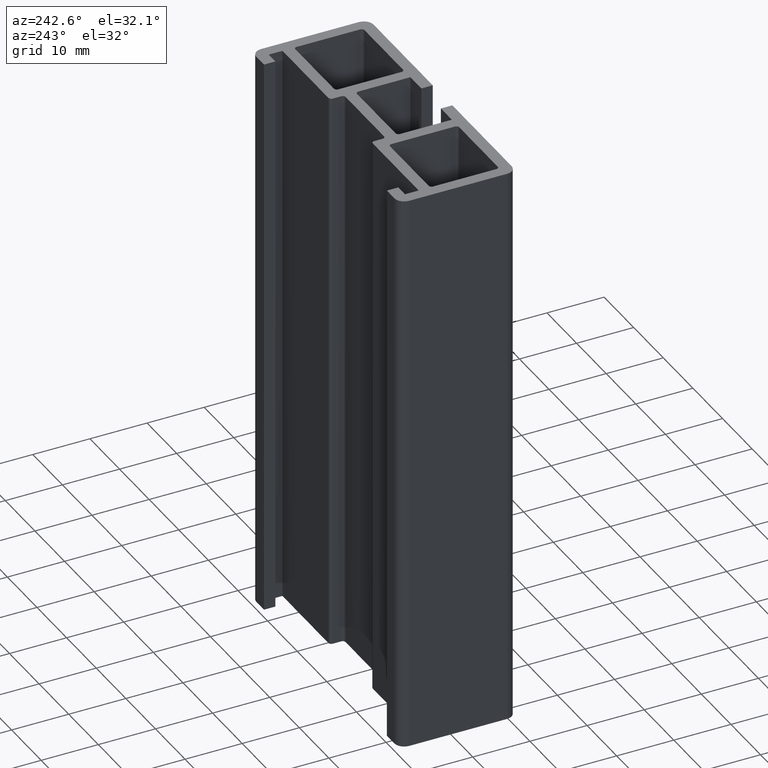
[diagram: clean part render]
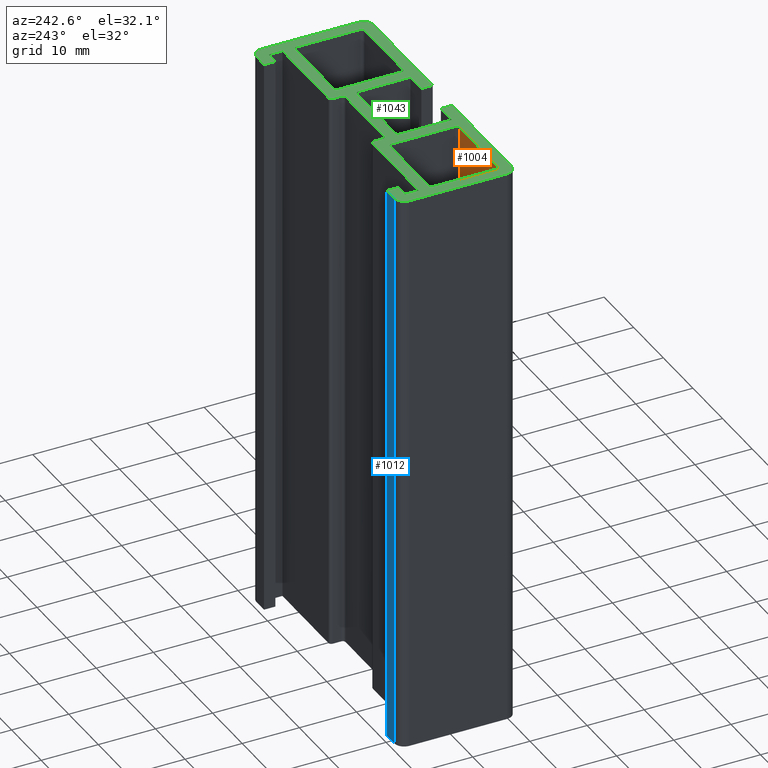
[diagram: same view with three faces highlighted in distinct colors, each labeled with its STEP entity id]
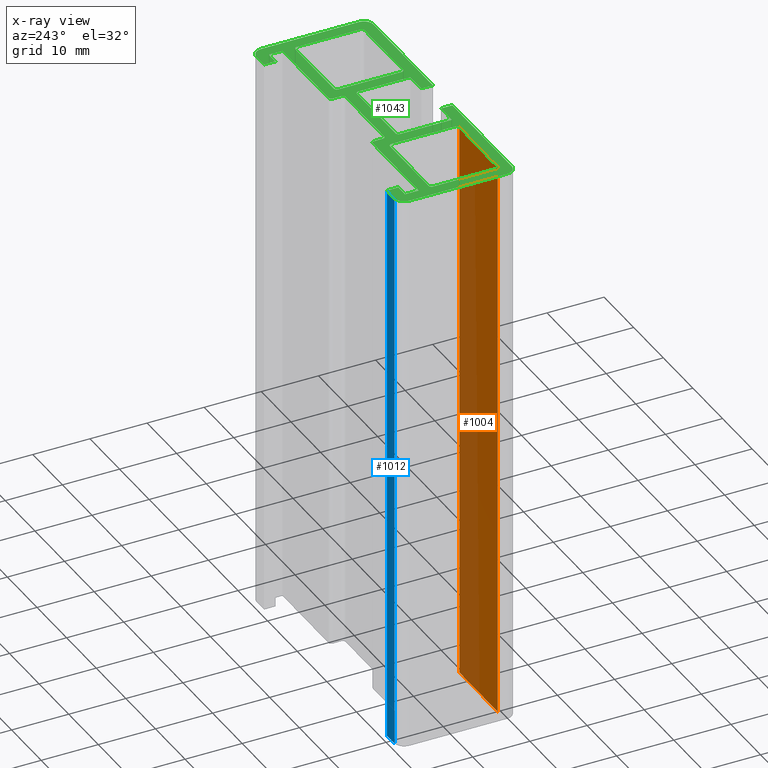
[diagram: x-ray of the same camera — body ghosted, the three highlighted faces saturated]
A machine part, auxiliary view with three faces highlighted in distinct colors.
The next image is the same camera in x-ray (body ghosted, the three faces saturated) — at least one of them is partly hidden behind the body in this view.
Their STEP definitions:

[orange] entity #1004 — the highlighted planar face has unit normal (0, -1, 0).
#24=PLANE('',#1070);
#64=FACE_OUTER_BOUND('',#116,.T.);
#116=EDGE_LOOP('',(#719,#720,#721,#722));
#182=LINE('',#1495,#296);
#183=LINE('',#1499,#297);
#184=LINE('',#1501,#298);
#185=LINE('',#1502,#299);
#296=VECTOR('',#1202,100.);
#297=VECTOR('',#1207,13.);
#298=VECTOR('',#1208,100.);
#299=VECTOR('',#1209,13.);
#447=VERTEX_POINT('',#1492);
#448=VERTEX_POINT('',#1494);
#449=VERTEX_POINT('',#1498);
#450=VERTEX_POINT('',#1500);
#557=EDGE_CURVE('',#447,#448,#182,.T.);
#559=EDGE_CURVE('',#449,#447,#183,.T.);
#560=EDGE_CURVE('',#449,#450,#184,.T.);
#561=EDGE_CURVE('',#448,#450,#185,.T.);
#719=ORIENTED_EDGE('',*,*,#559,.F.);
#720=ORIENTED_EDGE('',*,*,#560,.T.);
#721=ORIENTED_EDGE('',*,*,#561,.F.);
#722=ORIENTED_EDGE('',*,*,#557,.F.);
#1004=ADVANCED_FACE('',(#64),#24,.F.);
#1070=AXIS2_PLACEMENT_3D('',#1497,#1205,#1206);
#1202=DIRECTION('',(0.,0.,1.));
#1205=DIRECTION('center_axis',(0.,-1.,0.));
#1206=DIRECTION('ref_axis',(1.,0.,0.));
#1207=DIRECTION('',(1.,0.,0.));
#1208=DIRECTION('',(0.,0.,1.));
#1209=DIRECTION('',(-1.,0.,0.));
#1492=CARTESIAN_POINT('',(-9.49999999999999,-8.24999999999999,0.));
#1494=CARTESIAN_POINT('',(-9.49999999999999,-8.24999999999999,100.));
#1495=CARTESIAN_POINT('',(-9.49999999999999,-8.24999999999999,0.));
#1497=CARTESIAN_POINT('Origin',(-22.5,-8.24999999999999,0.));
#1498=CARTESIAN_POINT('',(-22.5,-8.24999999999999,0.));
#1499=CARTESIAN_POINT('',(-11.2500000000788,-8.24999999999999,0.));
#1500=CARTESIAN_POINT('',(-22.5,-8.24999999999999,100.));
#1501=CARTESIAN_POINT('',(-22.5,-8.24999999999999,0.));
#1502=CARTESIAN_POINT('',(-11.2500000000788,-8.24999999999999,100.));

[blue] entity #1012 — the highlighted planar face has unit normal (0, 1, 0).
#28=PLANE('',#1086);
#72=FACE_OUTER_BOUND('',#124,.T.);
#124=EDGE_LOOP('',(#751,#752,#753,#754));
#198=LINE('',#1544,#312);
#199=LINE('',#1547,#313);
#200=LINE('',#1549,#314);
#201=LINE('',#1550,#315);
#312=VECTOR('',#1252,100.);
#313=VECTOR('',#1255,2.55000000000003);
#314=VECTOR('',#1256,2.55000000000003);
#315=VECTOR('',#1257,100.);
#463=VERTEX_POINT('',#1540);
#464=VERTEX_POINT('',#1542);
#465=VERTEX_POINT('',#1546);
#466=VERTEX_POINT('',#1548);
#582=EDGE_CURVE('',#463,#464,#198,.T.);
#583=EDGE_CURVE('',#465,#463,#199,.T.);
#584=EDGE_CURVE('',#466,#464,#200,.T.);
#585=EDGE_CURVE('',#465,#466,#201,.T.);
#751=ORIENTED_EDGE('',*,*,#583,.T.);
#752=ORIENTED_EDGE('',*,*,#582,.T.);
#753=ORIENTED_EDGE('',*,*,#584,.F.);
#754=ORIENTED_EDGE('',*,*,#585,.F.);
#1012=ADVANCED_FACE('',(#72),#28,.T.);
#1086=AXIS2_PLACEMENT_3D('',#1545,#1253,#1254);
#1252=DIRECTION('',(0.,0.,1.));
#1253=DIRECTION('center_axis',(0.,1.,0.));
#1254=DIRECTION('ref_axis',(-1.,0.,0.));
#1255=DIRECTION('',(-1.,0.,0.));
#1256=DIRECTION('',(-1.,0.,0.));
#1257=DIRECTION('',(0.,0.,1.));
#1540=CARTESIAN_POINT('',(-23.3,10.25,0.));
#1542=CARTESIAN_POINT('',(-23.3,10.25,100.));
#1544=CARTESIAN_POINT('',(-23.3,10.25,0.));
#1545=CARTESIAN_POINT('Origin',(-20.75,10.25,0.));
#1546=CARTESIAN_POINT('',(-20.75,10.25,0.));
#1547=CARTESIAN_POINT('',(-20.75,10.25,0.));
#1548=CARTESIAN_POINT('',(-20.75,10.25,100.));
#1549=CARTESIAN_POINT('',(-20.75,10.25,100.));
#1550=CARTESIAN_POINT('',(-20.75,10.25,0.));

[green] entity #1043 — the highlighted planar face has unit normal (0, 0, 1).
#15=FACE_BOUND('',#156,.T.);
#16=FACE_BOUND('',#157,.T.);
#51=PLANE('',#1133);
#103=FACE_OUTER_BOUND('',#155,.T.);
#155=EDGE_LOOP('',(#875,#876,#877,#878,#879,#880,#881,#882,#883,#884,#885,
#886,#887,#888,#889,#890,#891,#892,#893,#894,#895,#896,#897,#898,#899,#900,
#901,#902,#903,#904,#905,#906,#907,#908));
#156=EDGE_LOOP('',(#909,#910,#911,#912,#913,#914,#915,#916));
#157=EDGE_LOOP('',(#917,#918,#919,#920,#921,#922,#923,#924));
#165=LINE('',#1442,#279);
#169=LINE('',#1454,#283);
#173=LINE('',#1466,#287);
#176=LINE('',#1475,#290);
#181=LINE('',#1490,#295);
#185=LINE('',#1502,#299);
#189=LINE('',#1514,#303);
#192=LINE('',#1523,#306);
#196=LINE('',#1537,#310);
#200=LINE('',#1549,#314);
#203=LINE('',#1555,#317);
#206=LINE('',#1561,#320);
#209=LINE('',#1567,#323);
#212=LINE('',#1573,#326);
#216=LINE('',#1585,#330);
#220=LINE('',#1597,#334);
#224=LINE('',#1609,#338);
#228=LINE('',#1621,#342);
#231=LINE('',#1627,#345);
#234=LINE('',#1633,#348);
#237=LINE('',#1639,#351);
#240=LINE('',#1645,#354);
#244=LINE('',#1657,#358);
#248=LINE('',#1669,#362);
#251=LINE('',#1675,#365);
#254=LINE('',#1681,#368);
#257=LINE('',#1687,#371);
#261=LINE('',#1699,#375);
#265=LINE('',#1711,#379);
#268=LINE('',#1717,#382);
#271=LINE('',#1723,#385);
#274=LINE('',#1727,#388);
#279=VECTOR('',#1149,11.1);
#283=VECTOR('',#1161,13.);
#287=VECTOR('',#1173,11.1);
#290=VECTOR('',#1184,13.);
#295=VECTOR('',#1197,11.1);
#299=VECTOR('',#1209,13.);
#303=VECTOR('',#1221,11.1);
#306=VECTOR('',#1232,13.);
#310=VECTOR('',#1244,17.1);
#314=VECTOR('',#1256,2.55000000000003);
#317=VECTOR('',#1261,2.00000000000001);
#320=VECTOR('',#1266,2.25000000000001);
#323=VECTOR('',#1271,2.4);
#326=VECTOR('',#1276,15.5);
#330=VECTOR('',#1288,1.50000000872664);
#334=VECTOR('',#1300,13.);
#338=VECTOR('',#1312,1.49999999127337);
#342=VECTOR('',#1324,15.5);
#345=VECTOR('',#1329,2.4);
#348=VECTOR('',#1334,2.25);
#351=VECTOR('',#1339,2.00000000000001);
#354=VECTOR('',#1344,2.54999999999999);
#358=VECTOR('',#1356,17.1);
#362=VECTOR('',#1368,20.);
#365=VECTOR('',#1373,1.99999999999999);
#368=VECTOR('',#1378,3.70000000000001);
#371=VECTOR('',#1383,9.10000049999999);
#375=VECTOR('',#1395,13.);
#379=VECTOR('',#1407,9.10000049999999);
#382=VECTOR('',#1412,3.69999999999999);
#385=VECTOR('',#1417,1.99999999999999);
#388=VECTOR('',#1422,20.);
#390=CIRCLE('',#1049,0.5);
#392=CIRCLE('',#1053,0.5);
#394=CIRCLE('',#1057,0.5);
#396=CIRCLE('',#1061,0.5);
#398=CIRCLE('',#1065,0.5);
#400=CIRCLE('',#1069,0.5);
#402=CIRCLE('',#1073,0.5);
#404=CIRCLE('',#1077,0.5);
#406=CIRCLE('',#1081,1.7);
#408=CIRCLE('',#1085,1.7);
#410=CIRCLE('',#1093,0.5);
#412=CIRCLE('',#1097,0.5);
#414=CIRCLE('',#1101,0.5);
#416=CIRCLE('',#1105,0.5);
#418=CIRCLE('',#1113,1.7);
#420=CIRCLE('',#1117,1.7);
#422=CIRCLE('',#1124,0.5);
#424=CIRCLE('',#1128,0.5);
#427=VERTEX_POINT('',#1432);
#428=VERTEX_POINT('',#1434);
#430=VERTEX_POINT('',#1440);
#432=VERTEX_POINT('',#1446);
#434=VERTEX_POINT('',#1452);
#436=VERTEX_POINT('',#1458);
#438=VERTEX_POINT('',#1464);
#440=VERTEX_POINT('',#1470);
#443=VERTEX_POINT('',#1480);
#444=VERTEX_POINT('',#1482);
#446=VERTEX_POINT('',#1488);
#448=VERTEX_POINT('',#1494);
#450=VERTEX_POINT('',#1500);
#452=VERTEX_POINT('',#1506);
#454=VERTEX_POINT('',#1512);
#456=VERTEX_POINT('',#1518);
#459=VERTEX_POINT('',#1528);
#460=VERTEX_POINT('',#1530);
#462=VERTEX_POINT('',#1536);
#464=VERTEX_POINT('',#1542);
#466=VERTEX_POINT('',#1548);
#468=VERTEX_POINT('',#1554);
#470=VERTEX_POINT('',#1560);
#472=VERTEX_POINT('',#1566);
#474=VERTEX_POINT('',#1572);
#476=VERTEX_POINT('',#1578);
#478=VERTEX_POINT('',#1584);
#480=VERTEX_POINT('',#1590);
#482=VERTEX_POINT('',#1596);
#484=VERTEX_POINT('',#1602);
#486=VERTEX_POINT('',#1608);
#488=VERTEX_POINT('',#1614);
#490=VERTEX_POINT('',#1620);
#492=VERTEX_POINT('',#1626);
#494=VERTEX_POINT('',#1632);
#496=VERTEX_POINT('',#1638);
#498=VERTEX_POINT('',#1644);
#500=VERTEX_POINT('',#1650);
#502=VERTEX_POINT('',#1656);
#504=VERTEX_POINT('',#1662);
#506=VERTEX_POINT('',#1668);
#508=VERTEX_POINT('',#1674);
#510=VERTEX_POINT('',#1680);
#512=VERTEX_POINT('',#1686);
#514=VERTEX_POINT('',#1692);
#516=VERTEX_POINT('',#1698);
#518=VERTEX_POINT('',#1704);
#520=VERTEX_POINT('',#1710);
#522=VERTEX_POINT('',#1716);
#524=VERTEX_POINT('',#1722);
#527=EDGE_CURVE('',#428,#427,#390,.T.);
#531=EDGE_CURVE('',#427,#430,#165,.T.);
#534=EDGE_CURVE('',#430,#432,#392,.T.);
#537=EDGE_CURVE('',#432,#434,#169,.T.);
#540=EDGE_CURVE('',#434,#436,#394,.T.);
#543=EDGE_CURVE('',#436,#438,#173,.T.);
#546=EDGE_CURVE('',#438,#440,#396,.T.);
#548=EDGE_CURVE('',#440,#428,#176,.T.);
#551=EDGE_CURVE('',#444,#443,#398,.T.);
#555=EDGE_CURVE('',#443,#446,#181,.T.);
#558=EDGE_CURVE('',#446,#448,#400,.T.);
#561=EDGE_CURVE('',#448,#450,#185,.T.);
#564=EDGE_CURVE('',#450,#452,#402,.T.);
#567=EDGE_CURVE('',#452,#454,#189,.T.);
#570=EDGE_CURVE('',#454,#456,#404,.T.);
#572=EDGE_CURVE('',#456,#444,#192,.T.);
#575=EDGE_CURVE('',#460,#459,#406,.T.);
#578=EDGE_CURVE('',#462,#460,#196,.T.);
#581=EDGE_CURVE('',#464,#462,#408,.T.);
#584=EDGE_CURVE('',#466,#464,#200,.T.);
#587=EDGE_CURVE('',#468,#466,#203,.T.);
#590=EDGE_CURVE('',#470,#468,#206,.T.);
#593=EDGE_CURVE('',#472,#470,#209,.T.);
#596=EDGE_CURVE('',#474,#472,#212,.T.);
#599=EDGE_CURVE('',#476,#474,#410,.T.);
#602=EDGE_CURVE('',#478,#476,#216,.T.);
#605=EDGE_CURVE('',#480,#478,#412,.T.);
#608=EDGE_CURVE('',#482,#480,#220,.T.);
#611=EDGE_CURVE('',#484,#482,#414,.T.);
#614=EDGE_CURVE('',#486,#484,#224,.T.);
#617=EDGE_CURVE('',#488,#486,#416,.T.);
#620=EDGE_CURVE('',#490,#488,#228,.T.);
#623=EDGE_CURVE('',#492,#490,#231,.T.);
#626=EDGE_CURVE('',#494,#492,#234,.T.);
#629=EDGE_CURVE('',#496,#494,#237,.T.);
#632=EDGE_CURVE('',#498,#496,#240,.T.);
#635=EDGE_CURVE('',#500,#498,#418,.T.);
#638=EDGE_CURVE('',#502,#500,#244,.T.);
#641=EDGE_CURVE('',#504,#502,#420,.T.);
#644=EDGE_CURVE('',#506,#504,#248,.T.);
#647=EDGE_CURVE('',#508,#506,#251,.T.);
#650=EDGE_CURVE('',#510,#508,#254,.T.);
#653=EDGE_CURVE('',#512,#510,#257,.T.);
#656=EDGE_CURVE('',#514,#512,#422,.T.);
#659=EDGE_CURVE('',#516,#514,#261,.T.);
#662=EDGE_CURVE('',#518,#516,#424,.T.);
#665=EDGE_CURVE('',#520,#518,#265,.T.);
#668=EDGE_CURVE('',#522,#520,#268,.T.);
#671=EDGE_CURVE('',#524,#522,#271,.T.);
#674=EDGE_CURVE('',#459,#524,#274,.T.);
#875=ORIENTED_EDGE('',*,*,#674,.T.);
#876=ORIENTED_EDGE('',*,*,#671,.T.);
#877=ORIENTED_EDGE('',*,*,#668,.T.);
#878=ORIENTED_EDGE('',*,*,#665,.T.);
#879=ORIENTED_EDGE('',*,*,#662,.T.);
#880=ORIENTED_EDGE('',*,*,#659,.T.);
#881=ORIENTED_EDGE('',*,*,#656,.T.);
#882=ORIENTED_EDGE('',*,*,#653,.T.);
#883=ORIENTED_EDGE('',*,*,#650,.T.);
#884=ORIENTED_EDGE('',*,*,#647,.T.);
#885=ORIENTED_EDGE('',*,*,#644,.T.);
#886=ORIENTED_EDGE('',*,*,#641,.T.);
#887=ORIENTED_EDGE('',*,*,#638,.T.);
#888=ORIENTED_EDGE('',*,*,#635,.T.);
#889=ORIENTED_EDGE('',*,*,#632,.T.);
#890=ORIENTED_EDGE('',*,*,#629,.T.);
#891=ORIENTED_EDGE('',*,*,#626,.T.);
#892=ORIENTED_EDGE('',*,*,#623,.T.);
#893=ORIENTED_EDGE('',*,*,#620,.T.);
#894=ORIENTED_EDGE('',*,*,#617,.T.);
#895=ORIENTED_EDGE('',*,*,#614,.T.);
#896=ORIENTED_EDGE('',*,*,#611,.T.);
#897=ORIENTED_EDGE('',*,*,#608,.T.);
#898=ORIENTED_EDGE('',*,*,#605,.T.);
#899=ORIENTED_EDGE('',*,*,#602,.T.);
#900=ORIENTED_EDGE('',*,*,#599,.T.);
#901=ORIENTED_EDGE('',*,*,#596,.T.);
#902=ORIENTED_EDGE('',*,*,#593,.T.);
#903=ORIENTED_EDGE('',*,*,#590,.T.);
#904=ORIENTED_EDGE('',*,*,#587,.T.);
#905=ORIENTED_EDGE('',*,*,#584,.T.);
#906=ORIENTED_EDGE('',*,*,#581,.T.);
#907=ORIENTED_EDGE('',*,*,#578,.T.);
#908=ORIENTED_EDGE('',*,*,#575,.T.);
#909=ORIENTED_EDGE('',*,*,#527,.T.);
#910=ORIENTED_EDGE('',*,*,#531,.T.);
#911=ORIENTED_EDGE('',*,*,#534,.T.);
#912=ORIENTED_EDGE('',*,*,#537,.T.);
#913=ORIENTED_EDGE('',*,*,#540,.T.);
#914=ORIENTED_EDGE('',*,*,#543,.T.);
#915=ORIENTED_EDGE('',*,*,#546,.T.);
#916=ORIENTED_EDGE('',*,*,#548,.T.);
#917=ORIENTED_EDGE('',*,*,#551,.T.);
#918=ORIENTED_EDGE('',*,*,#555,.T.);
#919=ORIENTED_EDGE('',*,*,#558,.T.);
#920=ORIENTED_EDGE('',*,*,#561,.T.);
#921=ORIENTED_EDGE('',*,*,#564,.T.);
#922=ORIENTED_EDGE('',*,*,#567,.T.);
#923=ORIENTED_EDGE('',*,*,#570,.T.);
#924=ORIENTED_EDGE('',*,*,#572,.T.);
#1043=ADVANCED_FACE('',(#103,#15,#16),#51,.T.);
#1049=AXIS2_PLACEMENT_3D('',#1435,#1142,#1143);
#1053=AXIS2_PLACEMENT_3D('',#1448,#1155,#1156);
#1057=AXIS2_PLACEMENT_3D('',#1460,#1167,#1168);
#1061=AXIS2_PLACEMENT_3D('',#1472,#1179,#1180);
#1065=AXIS2_PLACEMENT_3D('',#1483,#1190,#1191);
#1069=AXIS2_PLACEMENT_3D('',#1496,#1203,#1204);
#1073=AXIS2_PLACEMENT_3D('',#1508,#1215,#1216);
#1077=AXIS2_PLACEMENT_3D('',#1520,#1227,#1228);
#1081=AXIS2_PLACEMENT_3D('',#1531,#1238,#1239);
#1085=AXIS2_PLACEMENT_3D('',#1543,#1250,#1251);
#1093=AXIS2_PLACEMENT_3D('',#1579,#1282,#1283);
#1097=AXIS2_PLACEMENT_3D('',#1591,#1294,#1295);
#1101=AXIS2_PLACEMENT_3D('',#1603,#1306,#1307);
#1105=AXIS2_PLACEMENT_3D('',#1615,#1318,#1319);
#1113=AXIS2_PLACEMENT_3D('',#1651,#1350,#1351);
#1117=AXIS2_PLACEMENT_3D('',#1663,#1362,#1363);
#1124=AXIS2_PLACEMENT_3D('',#1693,#1389,#1390);
#1128=AXIS2_PLACEMENT_3D('',#1705,#1401,#1402);
#1133=AXIS2_PLACEMENT_3D('',#1728,#1423,#1424);
#1142=DIRECTION('center_axis',(0.,0.,-1.));
#1143=DIRECTION('ref_axis',(-1.,0.,0.));
#1149=DIRECTION('',(1.60032147693716E-15,-1.,0.));
#1155=DIRECTION('center_axis',(0.,0.,-1.));
#1156=DIRECTION('ref_axis',(0.,1.,0.));
#1161=DIRECTION('',(-1.,0.,0.));
#1167=DIRECTION('center_axis',(0.,0.,-1.));
#1168=DIRECTION('ref_axis',(1.,0.,0.));
#1173=DIRECTION('',(0.,1.,0.));
#1179=DIRECTION('center_axis',(0.,0.,-1.));
#1180=DIRECTION('ref_axis',(0.,-1.,0.));
#1184=DIRECTION('',(1.,0.,0.));
#1190=DIRECTION('center_axis',(0.,0.,-1.));
#1191=DIRECTION('ref_axis',(1.,0.,0.));
#1197=DIRECTION('',(1.60032147693716E-15,-1.,0.));
#1203=DIRECTION('center_axis',(0.,0.,-1.));
#1204=DIRECTION('ref_axis',(0.,-1.,0.));
#1209=DIRECTION('',(-1.,0.,0.));
#1215=DIRECTION('center_axis',(0.,0.,-1.));
#1216=DIRECTION('ref_axis',(-1.,0.,0.));
#1221=DIRECTION('',(1.60032147693716E-15,1.,0.));
#1227=DIRECTION('center_axis',(0.,0.,-1.));
#1228=DIRECTION('ref_axis',(0.,1.,0.));
#1232=DIRECTION('',(1.,0.,0.));
#1238=DIRECTION('center_axis',(0.,0.,1.));
#1239=DIRECTION('ref_axis',(-1.,0.,0.));
#1244=DIRECTION('',(1.03880516923991E-15,-1.,0.));
#1250=DIRECTION('center_axis',(0.,0.,1.));
#1251=DIRECTION('ref_axis',(0.,1.,0.));
#1256=DIRECTION('',(-1.,0.,0.));
#1261=DIRECTION('',(0.,1.,0.));
#1266=DIRECTION('',(1.,0.,0.));
#1271=DIRECTION('',(0.,1.,0.));
#1276=DIRECTION('',(-1.,0.,0.));
#1282=DIRECTION('center_axis',(0.,0.,1.));
#1283=DIRECTION('ref_axis',(1.,0.,0.));
#1288=DIRECTION('',(0.,1.,0.));
#1294=DIRECTION('center_axis',(0.,0.,-1.));
#1295=DIRECTION('ref_axis',(1.,1.74532743812964E-8,0.));
#1300=DIRECTION('',(-1.,0.,0.));
#1306=DIRECTION('center_axis',(0.,0.,-1.));
#1307=DIRECTION('ref_axis',(0.,1.,0.));
#1312=DIRECTION('',(0.,-1.,0.));
#1318=DIRECTION('center_axis',(0.,0.,1.));
#1319=DIRECTION('ref_axis',(0.,1.,0.));
#1324=DIRECTION('',(-1.,-1.14603667058081E-15,0.));
#1329=DIRECTION('',(0.,-1.,0.));
#1334=DIRECTION('',(1.,0.,0.));
#1339=DIRECTION('',(0.,-1.,0.));
#1344=DIRECTION('',(-1.,6.96610525255003E-15,0.));
#1350=DIRECTION('center_axis',(0.,0.,1.));
#1351=DIRECTION('ref_axis',(1.,0.,0.));
#1356=DIRECTION('',(0.,1.,0.));
#1362=DIRECTION('center_axis',(0.,0.,1.));
#1363=DIRECTION('ref_axis',(0.,-1.,0.));
#1368=DIRECTION('',(1.,0.,0.));
#1373=DIRECTION('',(0.,-1.,0.));
#1378=DIRECTION('',(-1.,0.,0.));
#1383=DIRECTION('',(0.,-1.,0.));
#1389=DIRECTION('center_axis',(0.,0.,-1.));
#1390=DIRECTION('ref_axis',(-1.,0.,0.));
#1395=DIRECTION('',(1.,0.,0.));
#1401=DIRECTION('center_axis',(0.,0.,-1.));
#1402=DIRECTION('ref_axis',(3.55271367880045E-14,-1.,0.));
#1407=DIRECTION('',(0.,1.,0.));
#1412=DIRECTION('',(-1.,0.,0.));
#1417=DIRECTION('',(0.,1.,0.));
#1422=DIRECTION('',(1.,0.,0.));
#1423=DIRECTION('center_axis',(0.,0.,1.));
#1424=DIRECTION('ref_axis',(1.,0.,0.));
#1432=CARTESIAN_POINT('',(23.,3.35000000000001,100.));
#1434=CARTESIAN_POINT('',(22.5,3.85,100.));
#1435=CARTESIAN_POINT('Origin',(22.5,3.35000000000001,100.));
#1440=CARTESIAN_POINT('',(23.,-7.74999999999999,100.));
#1442=CARTESIAN_POINT('',(23.,-4.25355130852781,100.));
#1446=CARTESIAN_POINT('',(22.5,-8.24999999999999,100.));
#1448=CARTESIAN_POINT('Origin',(22.5,-7.74999999999999,100.));
#1452=CARTESIAN_POINT('',(9.50000000000001,-8.24999999999999,100.));
#1454=CARTESIAN_POINT('',(4.74999999992118,-8.24999999999999,100.));
#1458=CARTESIAN_POINT('',(9.,-7.74999999999999,100.));
#1460=CARTESIAN_POINT('Origin',(9.50000000000001,-7.74999999999999,100.));
#1464=CARTESIAN_POINT('',(9.,3.35000000000001,100.));
#1466=CARTESIAN_POINT('',(9.,1.29644869147217,100.));
#1470=CARTESIAN_POINT('',(9.50000000000001,3.85,100.));
#1472=CARTESIAN_POINT('Origin',(9.50000000000001,3.35000000000001,100.));
#1475=CARTESIAN_POINT('',(11.2499999999212,3.85,100.));
#1480=CARTESIAN_POINT('',(-9.,3.35000000000001,100.));
#1482=CARTESIAN_POINT('',(-9.49999999999999,3.85,100.));
#1483=CARTESIAN_POINT('Origin',(-9.49999999999999,3.35000000000001,100.));
#1488=CARTESIAN_POINT('',(-8.99999999999999,-7.74999999999999,100.));
#1490=CARTESIAN_POINT('',(-8.99999999999999,-4.25355130852784,100.));
#1494=CARTESIAN_POINT('',(-9.49999999999999,-8.24999999999999,100.));
#1496=CARTESIAN_POINT('Origin',(-9.49999999999999,-7.74999999999999,100.));
#1500=CARTESIAN_POINT('',(-22.5,-8.24999999999999,100.));
#1502=CARTESIAN_POINT('',(-11.2500000000788,-8.24999999999999,100.));
#1506=CARTESIAN_POINT('',(-23.,-7.74999999999999,100.));
#1508=CARTESIAN_POINT('Origin',(-22.5,-7.74999999999999,100.));
#1512=CARTESIAN_POINT('',(-23.,3.35000000000001,100.));
#1514=CARTESIAN_POINT('',(-23.,1.29644869147219,100.));
#1518=CARTESIAN_POINT('',(-22.5,3.85,100.));
#1520=CARTESIAN_POINT('Origin',(-22.5,3.35000000000001,100.));
#1523=CARTESIAN_POINT('',(-4.75000000007882,3.85,100.));
#1528=CARTESIAN_POINT('',(-23.3,-10.25,100.));
#1530=CARTESIAN_POINT('',(-25.,-8.55,100.));
#1531=CARTESIAN_POINT('Origin',(-23.3,-8.55,100.));
#1536=CARTESIAN_POINT('',(-25.,8.55,100.));
#1537=CARTESIAN_POINT('',(-25.,8.55,100.));
#1542=CARTESIAN_POINT('',(-23.3,10.25,100.));
#1543=CARTESIAN_POINT('Origin',(-23.3,8.55,100.));
#1548=CARTESIAN_POINT('',(-20.75,10.25,100.));
#1549=CARTESIAN_POINT('',(-20.75,10.25,100.));
#1554=CARTESIAN_POINT('',(-20.75,8.25000000000001,100.));
#1555=CARTESIAN_POINT('',(-20.75,8.25000000000001,100.));
#1560=CARTESIAN_POINT('',(-23.,8.25000000000001,100.));
#1561=CARTESIAN_POINT('',(-23.,8.25000000000001,100.));
#1566=CARTESIAN_POINT('',(-23.,5.85000000000001,100.));
#1567=CARTESIAN_POINT('',(-23.,5.85000000000001,100.));
#1572=CARTESIAN_POINT('',(-7.5,5.85000000000001,100.));
#1573=CARTESIAN_POINT('',(-7.5,5.85000000000001,100.));
#1578=CARTESIAN_POINT('',(-6.99999999999999,5.35,100.));
#1579=CARTESIAN_POINT('Origin',(-7.5,5.35,100.));
#1584=CARTESIAN_POINT('',(-6.99999999999999,3.84999999127336,100.));
#1585=CARTESIAN_POINT('',(-6.99999999999999,3.84999999127336,100.));
#1590=CARTESIAN_POINT('',(-6.5,3.35000000000001,100.));
#1591=CARTESIAN_POINT('Origin',(-6.5,3.85,100.));
#1596=CARTESIAN_POINT('',(6.5,3.35000000000001,100.));
#1597=CARTESIAN_POINT('',(6.5,3.35000000000001,100.));
#1602=CARTESIAN_POINT('',(7.00000000000001,3.85,100.));
#1603=CARTESIAN_POINT('Origin',(6.5,3.85000000000002,100.));
#1608=CARTESIAN_POINT('',(7.00000000000001,5.34999999127336,100.));
#1609=CARTESIAN_POINT('',(7.00000000000001,5.34999999127336,100.));
#1614=CARTESIAN_POINT('',(7.5,5.84999999999999,100.));
#1615=CARTESIAN_POINT('Origin',(7.5,5.35,100.));
#1620=CARTESIAN_POINT('',(23.,5.85000000000001,100.));
#1621=CARTESIAN_POINT('',(23.,5.85000000000001,100.));
#1626=CARTESIAN_POINT('',(23.,8.25000000000001,100.));
#1627=CARTESIAN_POINT('',(23.,8.25000000000001,100.));
#1632=CARTESIAN_POINT('',(20.75,8.25000000000001,100.));
#1633=CARTESIAN_POINT('',(20.75,8.25000000000001,100.));
#1638=CARTESIAN_POINT('',(20.75,10.25,100.));
#1639=CARTESIAN_POINT('',(20.75,10.25,100.));
#1644=CARTESIAN_POINT('',(23.3,10.25,100.));
#1645=CARTESIAN_POINT('',(23.3,10.25,100.));
#1650=CARTESIAN_POINT('',(25.,8.55,100.));
#1651=CARTESIAN_POINT('Origin',(23.3,8.55,100.));
#1656=CARTESIAN_POINT('',(25.,-8.55,100.));
#1657=CARTESIAN_POINT('',(25.,-8.55,100.));
#1662=CARTESIAN_POINT('',(23.3,-10.25,100.));
#1663=CARTESIAN_POINT('Origin',(23.3,-8.55,100.));
#1668=CARTESIAN_POINT('',(3.3,-10.25,100.));
#1669=CARTESIAN_POINT('',(3.3,-10.25,100.));
#1674=CARTESIAN_POINT('',(3.3,-8.24999999999999,100.));
#1675=CARTESIAN_POINT('',(3.3,-8.24999999999999,100.));
#1680=CARTESIAN_POINT('',(7.00000000000001,-8.24999999999999,100.));
#1681=CARTESIAN_POINT('',(7.00000000000001,-8.24999999999999,100.));
#1686=CARTESIAN_POINT('',(7.00000000000001,0.850000499999997,100.));
#1687=CARTESIAN_POINT('',(7.00000000000001,0.850000499999997,100.));
#1692=CARTESIAN_POINT('',(6.5,1.3500005,100.));
#1693=CARTESIAN_POINT('Origin',(6.5,0.850000499999997,100.));
#1698=CARTESIAN_POINT('',(-6.5,1.3500005,100.));
#1699=CARTESIAN_POINT('',(-6.5,1.3500005,100.));
#1704=CARTESIAN_POINT('',(-6.99999999999999,0.850000499999997,100.));
#1705=CARTESIAN_POINT('Origin',(-6.49999999999999,0.850000499999997,100.));
#1710=CARTESIAN_POINT('',(-6.99999999999999,-8.24999999999999,100.));
#1711=CARTESIAN_POINT('',(-6.99999999999999,-8.24999999999999,100.));
#1716=CARTESIAN_POINT('',(-3.3,-8.24999999999999,100.));
#1717=CARTESIAN_POINT('',(-3.3,-8.24999999999999,100.));
#1722=CARTESIAN_POINT('',(-3.3,-10.25,100.));
#1723=CARTESIAN_POINT('',(-3.3,-10.25,100.));
#1727=CARTESIAN_POINT('',(-23.3,-10.25,100.));
#1728=CARTESIAN_POINT('Origin',(-1.57655177780933E-10,-0.757102617055673,
100.));